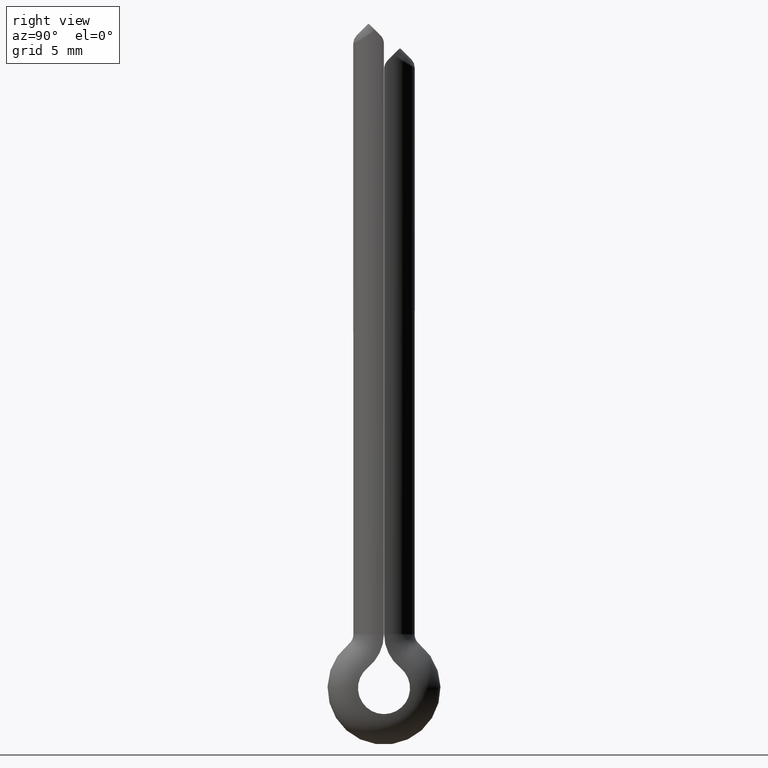
[diagram: clean part render]
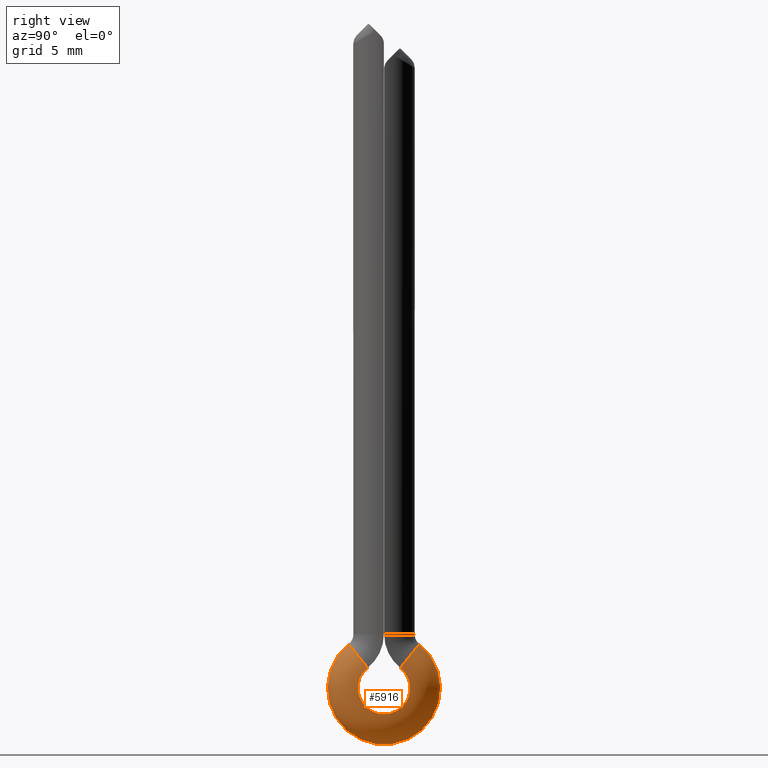
[diagram: same view with one face highlighted and labeled with its STEP entity id]
A machine part, right view. The second image highlights one B-rep face of the part: STEP entity #5916.
In plain terms, the highlighted toroidal blend (fillet) surface has major radius 2.1 mm and minor (blend) radius 2.5 mm.
Its self-contained STEP definition (entity closure, byte-faithful):
#466 = CARTESIAN_POINT ( 'NONE',  ( 2.499979999919999400, -2.500000000000000000, -51.86134691526156400 ) ) ;
#1033 = DIRECTION ( 'NONE',  ( -1.000000000000000000, -0.0000000000000000000, -0.0000000000000000000 ) ) ;
#1168 = EDGE_LOOP ( 'NONE', ( #4513, #4917, #12536, #8341 ) ) ;
#1224 = VERTEX_POINT ( 'NONE', #10689 ) ;
#1546 = DIRECTION ( 'NONE',  ( -1.000000000000000000, -0.0000000000000000000, -0.0000000000000000000 ) ) ;
#2044 = AXIS2_PLACEMENT_3D ( 'NONE', #9518, #10855, #4405 ) ;
#2151 = FACE_OUTER_BOUND ( 'NONE', #1168, .T. ) ;
#2296 = CARTESIAN_POINT ( 'NONE',  ( 0.0000000000000000000, -3.812499999999982700, -50.22203494068197200 ) ) ;
#2401 = DIRECTION ( 'NONE',  ( 1.000000000000000000, 0.0000000000000000000, 0.0000000000000000000 ) ) ;
#2456 = VERTEX_POINT ( 'NONE', #5722 ) ;
#2606 = DIRECTION ( 'NONE',  ( 1.000000000000000000, 0.0000000000000000000, 0.0000000000000000000 ) ) ;
#2738 = CIRCLE ( 'NONE', #12901, 2.109999999999993700 ) ;
#3944 = CIRCLE ( 'NONE', #2044, 2.109999999999993700 ) ;
#4405 = DIRECTION ( 'NONE',  ( 0.0000000000000000000, 0.0000000000000000000, 1.000000000000000000 ) ) ;
#4513 = ORIENTED_EDGE ( 'NONE', *, *, #16190, .F. ) ;
#4744 = AXIS2_PLACEMENT_3D ( 'NONE', #2296, #4923, #2401 ) ;
#4917 = ORIENTED_EDGE ( 'NONE', *, *, #12696, .T. ) ;
#4923 = DIRECTION ( 'NONE',  ( 0.0000000000000000000, -0.7806247497998088900, -0.6249999999999886800 ) ) ;
#4972 = VERTEX_POINT ( 'NONE', #14066 ) ;
#5234 = DIRECTION ( 'NONE',  ( 0.0000000000000000000, -0.7806247497997997900, 0.6250000000000000000 ) ) ;
#5722 = CARTESIAN_POINT ( 'NONE',  ( 2.499979999919999400, -3.818749999999974800, -50.21422869318397600 ) ) ;
#5916 = ADVANCED_FACE ( 'NONE', ( #2151 ), #16566, .T. ) ;
#6540 = AXIS2_PLACEMENT_3D ( 'NONE', #13075, #5234, #2606 ) ;
#6694 = CIRCLE ( 'NONE', #6540, 2.500000000000000000 ) ;
#8033 = DIRECTION ( 'NONE',  ( 0.0000000000000000000, 0.0000000000000000000, 1.000000000000000000 ) ) ;
#8341 = ORIENTED_EDGE ( 'NONE', *, *, #12801, .F. ) ;
#8669 = AXIS2_PLACEMENT_3D ( 'NONE', #8889, #1033, #16446 ) ;
#8889 = CARTESIAN_POINT ( 'NONE',  ( 0.0000000000000000000, -2.500000000000000000, -51.86134691526156400 ) ) ;
#9057 = EDGE_CURVE ( 'NONE', #2456, #1224, #14701, .T. ) ;
#9518 = CARTESIAN_POINT ( 'NONE',  ( -2.499979999919999400, -2.500000000000000000, -51.86134691526156400 ) ) ;
#10689 = CARTESIAN_POINT ( 'NONE',  ( -2.499979999919999400, -3.818749999999974800, -50.21422869318397600 ) ) ;
#10855 = DIRECTION ( 'NONE',  ( -1.000000000000000000, -0.0000000000000000000, -0.0000000000000000000 ) ) ;
#11365 = VERTEX_POINT ( 'NONE', #11627 ) ;
#11627 = CARTESIAN_POINT ( 'NONE',  ( 2.499979999919999400, -1.181250000000001700, -50.21422869318399100 ) ) ;
#12536 = ORIENTED_EDGE ( 'NONE', *, *, #9057, .T. ) ;
#12696 = EDGE_CURVE ( 'NONE', #11365, #2456, #2738, .T. ) ;
#12801 = EDGE_CURVE ( 'NONE', #4972, #1224, #3944, .T. ) ;
#12901 = AXIS2_PLACEMENT_3D ( 'NONE', #466, #1546, #8033 ) ;
#13075 = CARTESIAN_POINT ( 'NONE',  ( 0.0000000000000000000, -1.187500000000001100, -50.22203494068197900 ) ) ;
#14066 = CARTESIAN_POINT ( 'NONE',  ( -2.499979999919999400, -1.181250000000001700, -50.21422869318399100 ) ) ;
#14701 = CIRCLE ( 'NONE', #4744, 2.500000000000000000 ) ;
#16190 = EDGE_CURVE ( 'NONE', #11365, #4972, #6694, .T. ) ;
#16446 = DIRECTION ( 'NONE',  ( 0.0000000000000000000, 0.0000000000000000000, 1.000000000000000000 ) ) ;
#16566 = TOROIDAL_SURFACE ( 'NONE', #8669, 2.100000000000000500, 2.500000000000000000 ) ;